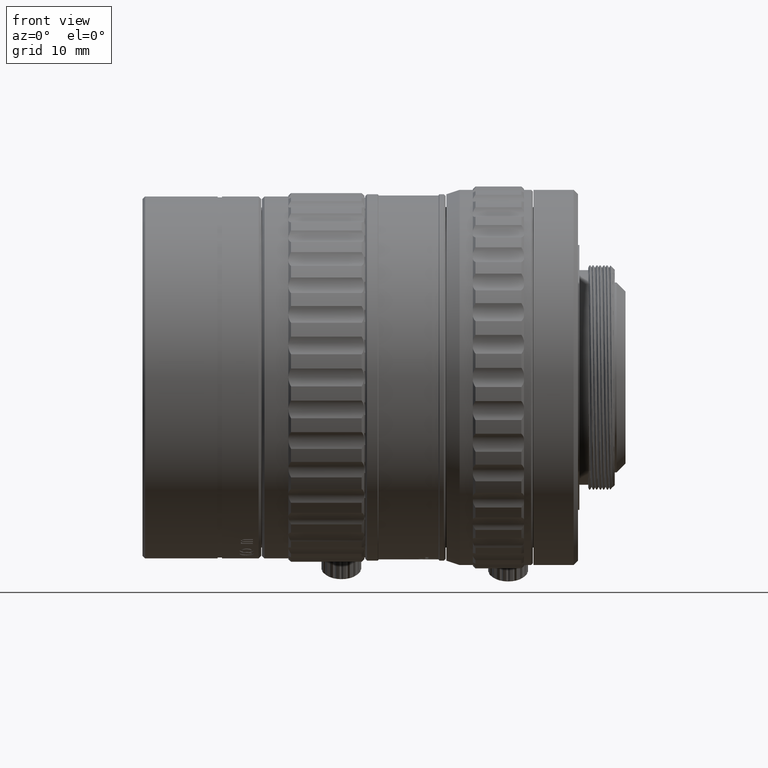
[diagram: clean part render]
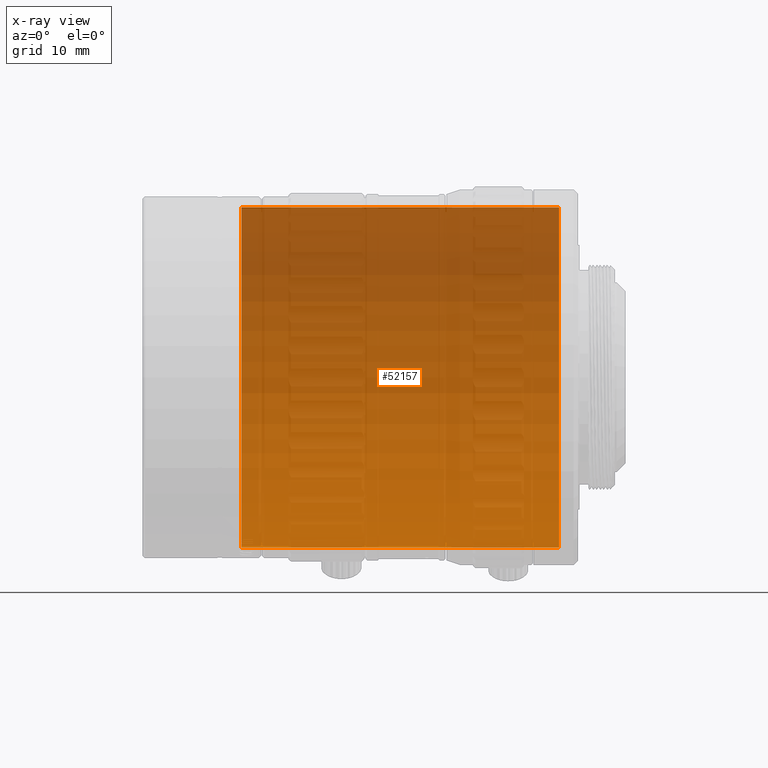
[diagram: x-ray — body ghosted, one internal face saturated and labeled with its STEP entity id]
A machine part, front view, then the same camera in x-ray: the body is ghosted and one INTERNAL B-rep face — a face not visible from any outside direction — is saturated and labeled: STEP entity #52157.
In plain terms, the highlighted cylindrical surface (partial cylindrical patch) has radius 19.2602 mm, axis along (1, -0, -0).
Its self-contained STEP definition (entity closure, byte-faithful):
#154 = EDGE_LOOP ( 'NONE', ( #44862, #43051, #41270, #103465 ) ) ;
#1336 = CARTESIAN_POINT ( 'NONE',  ( 42.58774020347999567, 0.000000000000000000, -19.26019444921145407 ) ) ;
#2034 = CARTESIAN_POINT ( 'NONE',  ( 6.587740203479998335, 2.358693548318243042E-15, 19.26019444921145407 ) ) ;
#3446 = DIRECTION ( 'NONE',  ( 1.000000000000000000, -0.000000000000000000, -0.000000000000000000 ) ) ;
#7604 = DIRECTION ( 'NONE',  ( 0.000000000000000000, 0.000000000000000000, 1.000000000000000000 ) ) ;
#8069 = CIRCLE ( 'NONE', #11501, 19.26019444921145407 ) ;
#8653 = DIRECTION ( 'NONE',  ( -1.000000000000000000, 0.000000000000000000, 0.000000000000000000 ) ) ;
#11501 = AXIS2_PLACEMENT_3D ( 'NONE', #102021, #85934, #93458 ) ;
#14150 = CYLINDRICAL_SURFACE ( 'NONE', #67421, 19.26019444921145407 ) ;
#17528 = DIRECTION ( 'NONE',  ( 1.000000000000000000, -0.000000000000000000, -0.000000000000000000 ) ) ;
#23974 = CARTESIAN_POINT ( 'NONE',  ( 6.587740203479998335, 0.000000000000000000, -19.26019444921145407 ) ) ;
#27307 = CIRCLE ( 'NONE', #41004, 19.26019444921145407 ) ;
#28302 = LINE ( 'NONE', #50896, #41926 ) ;
#33153 = EDGE_CURVE ( 'NONE', #101036, #44987, #8069, .T. ) ;
#39182 = CARTESIAN_POINT ( 'NONE',  ( 42.58774020347999567, 2.358693548318243042E-15, 19.26019444921145407 ) ) ;
#41004 = AXIS2_PLACEMENT_3D ( 'NONE', #47842, #8653, #7604 ) ;
#41270 = ORIENTED_EDGE ( 'NONE', *, *, #33153, .T. ) ;
#41926 = VECTOR ( 'NONE', #83639, 1000.000000000000000 ) ;
#43051 = ORIENTED_EDGE ( 'NONE', *, *, #82466, .T. ) ;
#44716 = DIRECTION ( 'NONE',  ( 0.000000000000000000, 0.000000000000000000, -1.000000000000000000 ) ) ;
#44862 = ORIENTED_EDGE ( 'NONE', *, *, #91427, .F. ) ;
#44987 = VERTEX_POINT ( 'NONE', #1336 ) ;
#47842 = CARTESIAN_POINT ( 'NONE',  ( 6.587740203479998335, 0.000000000000000000, -7.101917658244980644E-43 ) ) ;
#50896 = CARTESIAN_POINT ( 'NONE',  ( 6.587740203479998335, 2.358693548318243042E-15, 19.26019444921145407 ) ) ;
#52157 = ADVANCED_FACE ( 'NONE', ( #71055 ), #14150, .T. ) ;
#58085 = VERTEX_POINT ( 'NONE', #73182 ) ;
#58844 = LINE ( 'NONE', #23974, #99696 ) ;
#61090 = EDGE_CURVE ( 'NONE', #58085, #44987, #58844, .T. ) ;
#67421 = AXIS2_PLACEMENT_3D ( 'NONE', #76995, #3446, #44716 ) ;
#71055 = FACE_OUTER_BOUND ( 'NONE', #154, .T. ) ;
#73182 = CARTESIAN_POINT ( 'NONE',  ( 6.587740203479998335, 0.000000000000000000, -19.26019444921145407 ) ) ;
#76995 = CARTESIAN_POINT ( 'NONE',  ( 6.587740203479998335, 0.000000000000000000, -7.101917658244980644E-43 ) ) ;
#82466 = EDGE_CURVE ( 'NONE', #99015, #101036, #28302, .T. ) ;
#83639 = DIRECTION ( 'NONE',  ( 1.000000000000000000, -0.000000000000000000, -0.000000000000000000 ) ) ;
#85934 = DIRECTION ( 'NONE',  ( -1.000000000000000000, 0.000000000000000000, 0.000000000000000000 ) ) ;
#91427 = EDGE_CURVE ( 'NONE', #99015, #58085, #27307, .T. ) ;
#93458 = DIRECTION ( 'NONE',  ( 0.000000000000000000, 0.000000000000000000, 1.000000000000000000 ) ) ;
#99015 = VERTEX_POINT ( 'NONE', #2034 ) ;
#99696 = VECTOR ( 'NONE', #17528, 1000.000000000000000 ) ;
#101036 = VERTEX_POINT ( 'NONE', #39182 ) ;
#102021 = CARTESIAN_POINT ( 'NONE',  ( 42.58774020347999567, 0.000000000000000000, -7.101917658244980644E-43 ) ) ;
#103465 = ORIENTED_EDGE ( 'NONE', *, *, #61090, .F. ) ;